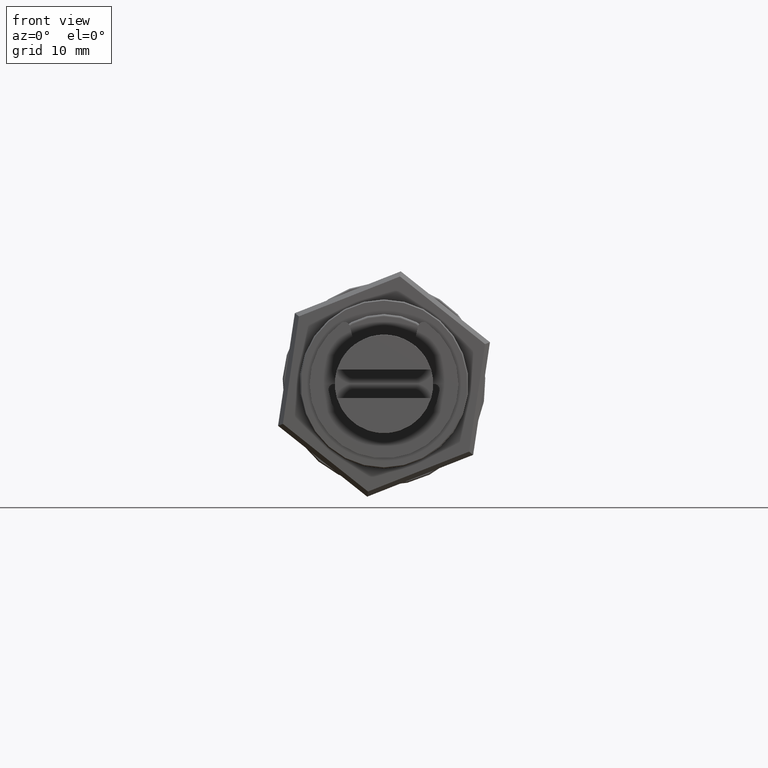
[diagram: clean part render]
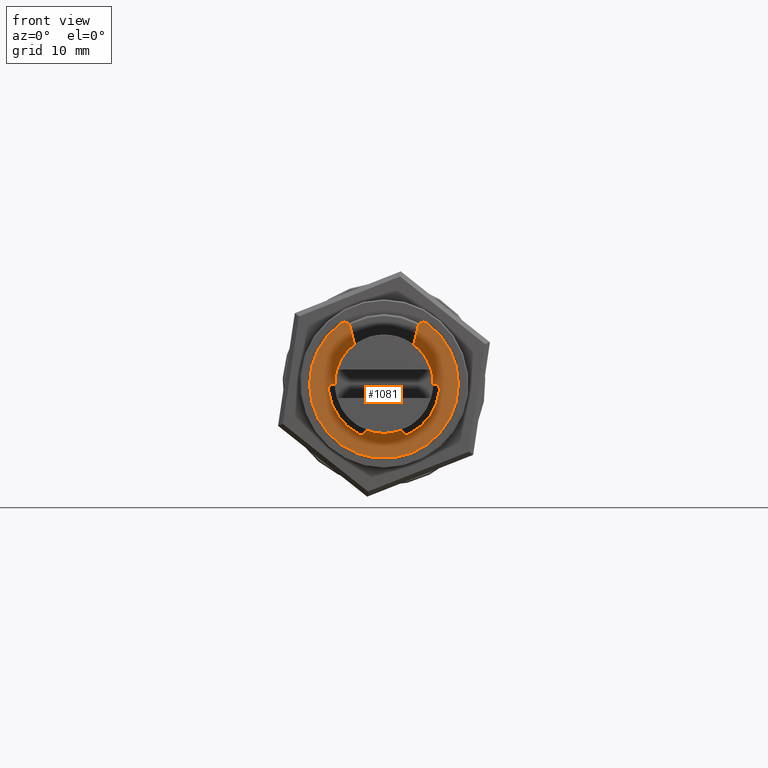
[diagram: same view with one face highlighted and labeled with its STEP entity id]
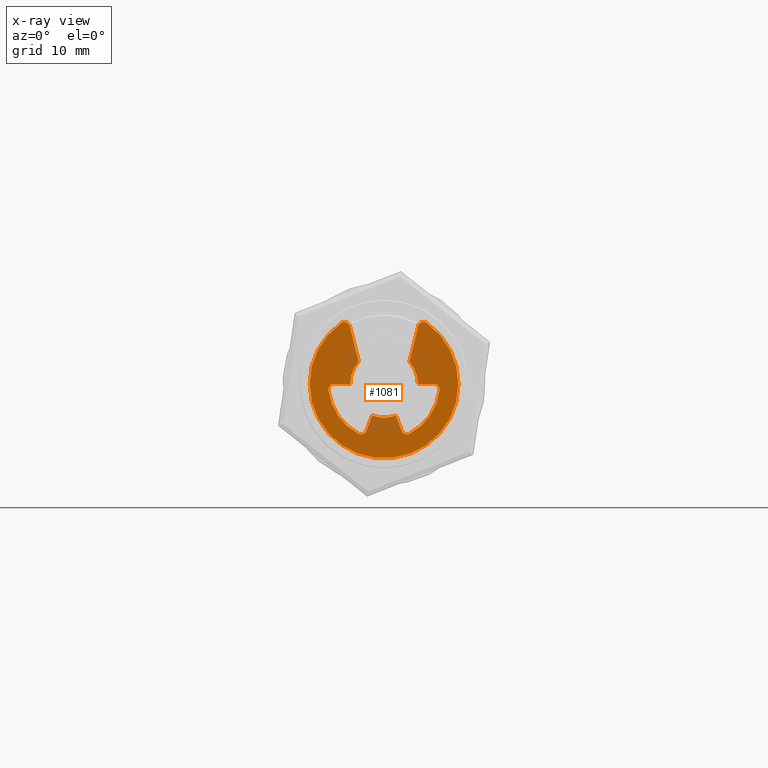
[diagram: x-ray of the same camera — body ghosted, the highlighted face saturated]
A machine part, front view. The second image highlights one B-rep face of the part: STEP entity #1081.
The next image is the same camera in x-ray: the body ghosted, the highlighted face saturated — about 13% of this face is hidden behind the body in this view.
In plain terms, the highlighted planar face has unit normal (0, 1, -0).
Its self-contained STEP definition (entity closure, byte-faithful):
#68=CIRCLE('',#1223,0.0006223);
#70=CIRCLE('',#1226,0.0006223);
#72=CIRCLE('',#1229,0.0006223);
#74=CIRCLE('',#1232,0.0006223);
#75=CIRCLE('',#1234,0.008382);
#76=CIRCLE('',#1235,0.0006223);
#77=CIRCLE('',#1236,0.00381);
#78=CIRCLE('',#1237,0.00629264516129032);
#79=CIRCLE('',#1238,0.00381);
#80=CIRCLE('',#1239,0.00629264516129032);
#81=CIRCLE('',#1240,0.00381);
#82=CIRCLE('',#1241,0.0006223);
#253=ORIENTED_EDGE('',*,*,#475,.F.);
#254=ORIENTED_EDGE('',*,*,#476,.T.);
#255=ORIENTED_EDGE('',*,*,#477,.F.);
#256=ORIENTED_EDGE('',*,*,#478,.F.);
#257=ORIENTED_EDGE('',*,*,#479,.F.);
#258=ORIENTED_EDGE('',*,*,#473,.T.);
#259=ORIENTED_EDGE('',*,*,#480,.F.);
#260=ORIENTED_EDGE('',*,*,#465,.T.);
#261=ORIENTED_EDGE('',*,*,#481,.F.);
#262=ORIENTED_EDGE('',*,*,#482,.F.);
#263=ORIENTED_EDGE('',*,*,#483,.F.);
#264=ORIENTED_EDGE('',*,*,#461,.T.);
#265=ORIENTED_EDGE('',*,*,#484,.F.);
#266=ORIENTED_EDGE('',*,*,#469,.T.);
#267=ORIENTED_EDGE('',*,*,#485,.F.);
#268=ORIENTED_EDGE('',*,*,#486,.F.);
#269=ORIENTED_EDGE('',*,*,#487,.F.);
#270=ORIENTED_EDGE('',*,*,#488,.T.);
#461=EDGE_CURVE('',#580,#579,#68,.T.);
#465=EDGE_CURVE('',#584,#583,#70,.T.);
#469=EDGE_CURVE('',#588,#587,#72,.T.);
#473=EDGE_CURVE('',#592,#591,#74,.T.);
#475=EDGE_CURVE('',#593,#594,#75,.T.);
#476=EDGE_CURVE('',#593,#595,#76,.T.);
#477=EDGE_CURVE('',#596,#595,#693,.T.);
#478=EDGE_CURVE('',#597,#596,#77,.T.);
#479=EDGE_CURVE('',#592,#597,#694,.T.);
#480=EDGE_CURVE('',#584,#591,#78,.T.);
#481=EDGE_CURVE('',#598,#583,#695,.T.);
#482=EDGE_CURVE('',#599,#598,#79,.T.);
#483=EDGE_CURVE('',#580,#599,#696,.T.);
#484=EDGE_CURVE('',#588,#579,#80,.T.);
#485=EDGE_CURVE('',#600,#587,#697,.T.);
#486=EDGE_CURVE('',#601,#600,#81,.T.);
#487=EDGE_CURVE('',#602,#601,#698,.T.);
#488=EDGE_CURVE('',#602,#594,#82,.T.);
#579=VERTEX_POINT('',#1776);
#580=VERTEX_POINT('',#1778);
#583=VERTEX_POINT('',#1785);
#584=VERTEX_POINT('',#1787);
#587=VERTEX_POINT('',#1794);
#588=VERTEX_POINT('',#1796);
#591=VERTEX_POINT('',#1803);
#592=VERTEX_POINT('',#1805);
#593=VERTEX_POINT('',#1809);
#594=VERTEX_POINT('',#1810);
#595=VERTEX_POINT('',#1812);
#596=VERTEX_POINT('',#1814);
#597=VERTEX_POINT('',#1816);
#598=VERTEX_POINT('',#1820);
#599=VERTEX_POINT('',#1822);
#600=VERTEX_POINT('',#1826);
#601=VERTEX_POINT('',#1828);
#602=VERTEX_POINT('',#1830);
#693=LINE('',#1813,#773);
#694=LINE('',#1817,#774);
#695=LINE('',#1819,#775);
#696=LINE('',#1823,#776);
#697=LINE('',#1825,#777);
#698=LINE('',#1829,#778);
#773=VECTOR('',#1471,1.);
#774=VECTOR('',#1474,1.);
#775=VECTOR('',#1477,1.);
#776=VECTOR('',#1480,1.);
#777=VECTOR('',#1483,1.);
#778=VECTOR('',#1486,1.);
#843=EDGE_LOOP('',(#253,#254,#255,#256,#257,#258,#259,#260,#261,#262,#263,
#264,#265,#266,#267,#268,#269,#270));
#945=FACE_BOUND('',#843,.T.);
#1031=PLANE('',#1233);
#1081=ADVANCED_FACE('',(#945),#1031,.F.);
#1223=AXIS2_PLACEMENT_3D('',#1777,#1438,#1439);
#1226=AXIS2_PLACEMENT_3D('',#1786,#1446,#1447);
#1229=AXIS2_PLACEMENT_3D('',#1795,#1454,#1455);
#1232=AXIS2_PLACEMENT_3D('',#1804,#1462,#1463);
#1233=AXIS2_PLACEMENT_3D('',#1807,#1465,#1466);
#1234=AXIS2_PLACEMENT_3D('',#1808,#1467,#1468);
#1235=AXIS2_PLACEMENT_3D('',#1811,#1469,#1470);
#1236=AXIS2_PLACEMENT_3D('',#1815,#1472,#1473);
#1237=AXIS2_PLACEMENT_3D('',#1818,#1475,#1476);
#1238=AXIS2_PLACEMENT_3D('',#1821,#1478,#1479);
#1239=AXIS2_PLACEMENT_3D('',#1824,#1481,#1482);
#1240=AXIS2_PLACEMENT_3D('',#1827,#1484,#1485);
#1241=AXIS2_PLACEMENT_3D('',#1831,#1487,#1488);
#1438=DIRECTION('',(1.,0.,0.));
#1439=DIRECTION('',(0.,0.,-1.));
#1446=DIRECTION('',(1.,0.,0.));
#1447=DIRECTION('',(0.,0.,-1.));
#1454=DIRECTION('',(1.,0.,0.));
#1455=DIRECTION('',(0.,0.,-1.));
#1462=DIRECTION('',(1.,0.,0.));
#1463=DIRECTION('',(0.,0.,-1.));
#1465=DIRECTION('',(1.,0.,0.));
#1466=DIRECTION('',(0.,0.,-1.));
#1467=DIRECTION('',(1.,0.,0.));
#1468=DIRECTION('',(0.,0.,-1.));
#1469=DIRECTION('',(-1.,0.,0.));
#1470=DIRECTION('',(0.,1.39379999676748E-15,-1.));
#1471=DIRECTION('',(0.,-0.240952820606873,0.970536829925373));
#1472=DIRECTION('',(-1.,0.,0.));
#1473=DIRECTION('',(0.,0.,-1.));
#1474=DIRECTION('',(0.,1.,1.22460635382238E-16));
#1475=DIRECTION('',(-1.,0.,0.));
#1476=DIRECTION('',(0.,0.,-1.));
#1477=DIRECTION('',(0.,-0.353553390593274,-0.935414346693485));
#1478=DIRECTION('',(-1.,0.,0.));
#1479=DIRECTION('',(0.,0.,1.));
#1480=DIRECTION('',(0.,-0.353553390593274,0.935414346693485));
#1481=DIRECTION('',(-1.,0.,0.));
#1482=DIRECTION('',(0.,0.,-1.));
#1483=DIRECTION('',(0.,1.,1.22460635382238E-16));
#1484=DIRECTION('',(-1.,0.,0.));
#1485=DIRECTION('',(0.,0.,1.));
#1486=DIRECTION('',(0.,-0.240952820606873,-0.970536829925373));
#1487=DIRECTION('',(-1.,0.,0.));
#1488=DIRECTION('',(0.,0.,-1.));
#1776=CARTESIAN_POINT('',(-0.0004445,0.00285734012662483,-0.00560651322362572));
#1777=CARTESIAN_POINT('',(-0.0004445,0.00257476853467541,-0.00505206702657576));
#1778=CARTESIAN_POINT('',(-0.0004445,0.00199266018672806,-0.00527208330154195));
#1785=CARTESIAN_POINT('',(-0.0004445,-0.00199266018672805,-0.00527208330154195));
#1786=CARTESIAN_POINT('',(-0.0004445,-0.0025747685346754,-0.00505206702657576));
#1787=CARTESIAN_POINT('',(-0.0004445,-0.00285734012662483,-0.00560651322362573));
#1794=CARTESIAN_POINT('',(-0.0004445,0.00563609412254343,8.84605925990066E-19));
#1795=CARTESIAN_POINT('',(-0.0004445,0.00563609412254343,-0.0006223));
#1796=CARTESIAN_POINT('',(-0.0004445,0.00625463519415267,-0.000690595188208944));
#1803=CARTESIAN_POINT('',(-0.0004445,-0.00625463519415267,-0.000690595188208945));
#1804=CARTESIAN_POINT('',(-0.0004445,-0.00563609412254343,-0.0006223));
#1805=CARTESIAN_POINT('',(-0.0004445,-0.00563609412254343,-5.18947247447107E-19));
#1807=CARTESIAN_POINT('',(-0.0004445,0.,0.));
#1808=CARTESIAN_POINT('',(-0.0004445,0.,0.));
#1809=CARTESIAN_POINT('',(-0.0004445,-0.00480802904314384,0.00686591441253715));
#1810=CARTESIAN_POINT('',(-0.0004445,0.00480802904314384,0.00686591441253715));
#1811=CARTESIAN_POINT('',(-0.0004445,-0.00445106931115285,0.00635617228190939));
#1812=CARTESIAN_POINT('',(-0.0004445,-0.0038471042418903,0.00650611722217305));
#1813=CARTESIAN_POINT('',(-0.0004445,-0.00405333224143882,0.00733678551823021));
#1814=CARTESIAN_POINT('',(-0.0004445,-0.0028575,0.00252007812378902));
#1815=CARTESIAN_POINT('',(-0.0004445,0.,0.));
#1816=CARTESIAN_POINT('',(-0.0004445,-0.00381,3.46796166199754E-19));
#1817=CARTESIAN_POINT('',(-0.0004445,0.00381,6.60981279475628E-19));
#1818=CARTESIAN_POINT('',(-0.0004445,0.,0.));
#1819=CARTESIAN_POINT('',(-0.0004445,-0.00134703841816037,-0.00356392866090218));
#1820=CARTESIAN_POINT('',(-0.0004445,-0.00134703841816037,-0.00356392866090218));
#1821=CARTESIAN_POINT('',(-0.0004445,0.,0.));
#1822=CARTESIAN_POINT('',(-0.0004445,0.00134703841816037,-0.00356392866090218));
#1823=CARTESIAN_POINT('',(-0.0004445,0.00134703841816037,-0.00356392866090218));
#1824=CARTESIAN_POINT('',(-0.0004445,0.,0.));
#1825=CARTESIAN_POINT('',(-0.0004445,0.00381,6.60981279475628E-19));
#1826=CARTESIAN_POINT('',(-0.0004445,0.00381,6.60981279475628E-19));
#1827=CARTESIAN_POINT('',(-0.0004445,0.,0.));
#1828=CARTESIAN_POINT('',(-0.0004445,0.0028575,0.00252007812378903));
#1829=CARTESIAN_POINT('',(-0.0004445,0.00405333224143882,0.00733678551823021));
#1830=CARTESIAN_POINT('',(-0.0004445,0.0038471042418903,0.00650611722217305));
#1831=CARTESIAN_POINT('',(-0.0004445,0.00445106931115285,0.00635617228190939));